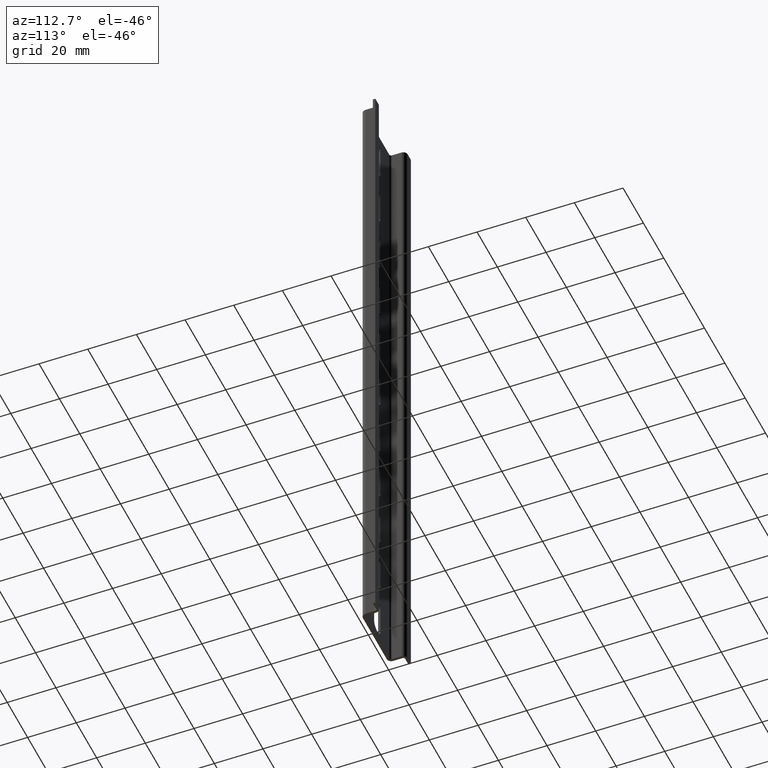
[diagram: clean part render]
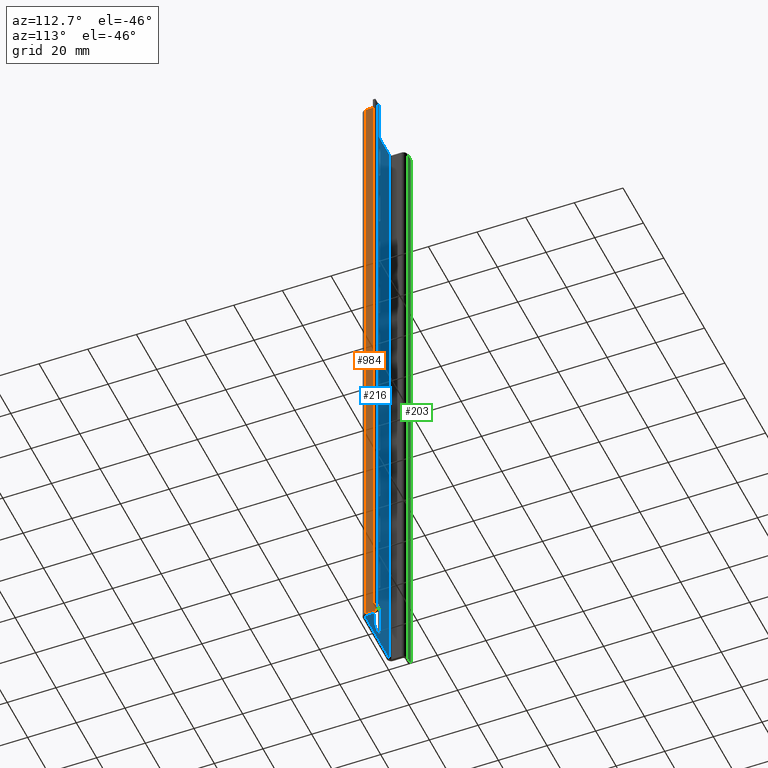
[diagram: same view with three faces highlighted in distinct colors, each labeled with its STEP entity id]
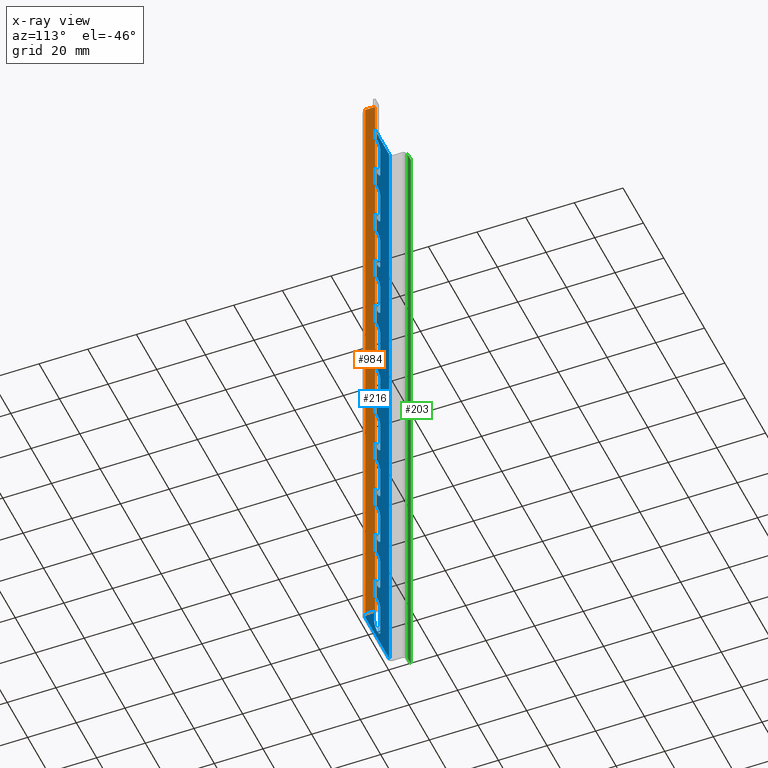
[diagram: x-ray of the same camera — body ghosted, the three highlighted faces saturated]
A machine part, auxiliary view with three faces highlighted in distinct colors.
The next image is the same camera in x-ray (body ghosted, the three faces saturated) — at least one of them is partly hidden behind the body in this view.
Their STEP definitions:

[orange] entity #984 — the highlighted planar face has unit normal (-1, 0, 0).
#32 = VECTOR ( 'NONE', #1032, 1000.000000000000000 ) ;
#98 = CARTESIAN_POINT ( 'NONE',  ( 27.00000000000000000, 5.700000000000000178, 275.0000000000000000 ) ) ;
#122 = DIRECTION ( 'NONE',  ( 0.000000000000000000, 0.000000000000000000, 1.000000000000000000 ) ) ;
#197 = VECTOR ( 'NONE', #1293, 1000.000000000000000 ) ;
#312 = ORIENTED_EDGE ( 'NONE', *, *, #861, .F. ) ;
#417 = EDGE_CURVE ( 'NONE', #2237, #1706, #1923, .T. ) ;
#426 = VERTEX_POINT ( 'NONE', #840 ) ;
#501 = CARTESIAN_POINT ( 'NONE',  ( 27.00000000000000000, 0.000000000000000000, 0.000000000000000000 ) ) ;
#721 = VECTOR ( 'NONE', #1080, 1000.000000000000000 ) ;
#723 = LINE ( 'NONE', #2145, #721 ) ;
#771 = CARTESIAN_POINT ( 'NONE',  ( 27.00000000000000000, 1.221245327087999603E-13, 275.0000000000000000 ) ) ;
#803 = ORIENTED_EDGE ( 'NONE', *, *, #1996, .T. ) ;
#819 = AXIS2_PLACEMENT_3D ( 'NONE', #501, #2099, #122 ) ;
#840 = CARTESIAN_POINT ( 'NONE',  ( 27.00000000000000000, 1.800000000000000044, -7.993605777301000084E-16 ) ) ;
#861 = EDGE_CURVE ( 'NONE', #1968, #1706, #1524, .T. ) ;
#893 = ORIENTED_EDGE ( 'NONE', *, *, #417, .T. ) ;
#961 = DIRECTION ( 'NONE',  ( 0.000000000000000000, 1.000000000000000000, -4.440892098500999885E-16 ) ) ;
#984 = ADVANCED_FACE ( 'NONE', ( #2124 ), #1379, .F. ) ;
#1009 = VECTOR ( 'NONE', #961, 1000.000000000000000 ) ;
#1032 = DIRECTION ( 'NONE',  ( 0.000000000000000000, 4.440892098500999885E-16, 1.000000000000000000 ) ) ;
#1062 = CARTESIAN_POINT ( 'NONE',  ( 27.00000000000000000, 1.800000000000000044, 275.0000000000000000 ) ) ;
#1080 = DIRECTION ( 'NONE',  ( 0.000000000000000000, 1.000000000000000000, -4.440892098500999885E-16 ) ) ;
#1088 = ORIENTED_EDGE ( 'NONE', *, *, #1634, .F. ) ;
#1293 = DIRECTION ( 'NONE',  ( 0.000000000000000000, 4.440892098500999885E-16, 1.000000000000000000 ) ) ;
#1330 = CARTESIAN_POINT ( 'NONE',  ( 27.00000000000000000, 5.700000000000000178, -2.531308496145000031E-15 ) ) ;
#1379 = PLANE ( 'NONE',  #819 ) ;
#1469 = CARTESIAN_POINT ( 'NONE',  ( 27.00000000000000000, 1.800000000000000044, -7.993605777301000084E-16 ) ) ;
#1524 = LINE ( 'NONE', #771, #1009 ) ;
#1634 = EDGE_CURVE ( 'NONE', #426, #1968, #2315, .T. ) ;
#1706 = VERTEX_POINT ( 'NONE', #98 ) ;
#1772 = CARTESIAN_POINT ( 'NONE',  ( 27.00000000000000000, 5.700000000000000178, -2.531308496145000031E-15 ) ) ;
#1923 = LINE ( 'NONE', #1772, #32 ) ;
#1930 = EDGE_LOOP ( 'NONE', ( #893, #312, #1088, #803 ) ) ;
#1968 = VERTEX_POINT ( 'NONE', #1062 ) ;
#1996 = EDGE_CURVE ( 'NONE', #426, #2237, #723, .T. ) ;
#2099 = DIRECTION ( 'NONE',  ( -1.000000000000000000, 0.000000000000000000, 0.000000000000000000 ) ) ;
#2124 = FACE_OUTER_BOUND ( 'NONE', #1930, .T. ) ;
#2145 = CARTESIAN_POINT ( 'NONE',  ( 27.00000000000000000, 0.000000000000000000, 0.000000000000000000 ) ) ;
#2237 = VERTEX_POINT ( 'NONE', #1330 ) ;
#2315 = LINE ( 'NONE', #1469, #197 ) ;

[blue] entity #216 — the highlighted planar face has unit normal (0, -1, 0).
#5 = EDGE_CURVE ( 'NONE', #1384, #1329, #1269, .T. ) ;
#11 = ORIENTED_EDGE ( 'NONE', *, *, #5, .F. ) ;
#24 = CARTESIAN_POINT ( 'NONE',  ( 13.50000000000000000, 1.000000000000000000, 31.64999999999999858 ) ) ;
#30 = EDGE_CURVE ( 'NONE', #2197, #141, #1419, .T. ) ;
#33 = CARTESIAN_POINT ( 'NONE',  ( 16.65000000000000213, 1.000000000000000000, 118.3499999999999943 ) ) ;
#34 = CARTESIAN_POINT ( 'NONE',  ( 13.50000000000000000, 1.000000000000000000, 18.35000000000000142 ) ) ;
#39 = VERTEX_POINT ( 'NONE', #2171 ) ;
#59 = ORIENTED_EDGE ( 'NONE', *, *, #346, .F. ) ;
#64 = CARTESIAN_POINT ( 'NONE',  ( 13.50000000000000000, 1.000000000000000000, 6.649999999999999467 ) ) ;
#66 = VECTOR ( 'NONE', #1963, 1000.000000000000000 ) ;
#71 = ORIENTED_EDGE ( 'NONE', *, *, #1098, .F. ) ;
#74 = CARTESIAN_POINT ( 'NONE',  ( 16.65000000000000213, 1.000000000000000000, 218.3499999999999943 ) ) ;
#83 = VERTEX_POINT ( 'NONE', #1613 ) ;
#85 = ORIENTED_EDGE ( 'NONE', *, *, #547, .F. ) ;
#93 = LINE ( 'NONE', #807, #1568 ) ;
#94 = ORIENTED_EDGE ( 'NONE', *, *, #1654, .F. ) ;
#95 = CARTESIAN_POINT ( 'NONE',  ( 16.65000000000000213, 1.000000000000000000, 31.64999999999999858 ) ) ;
#96 = VERTEX_POINT ( 'NONE', #611 ) ;
#100 = DIRECTION ( 'NONE',  ( 0.000000000000000000, 4.440892098500999885E-16, 1.000000000000000000 ) ) ;
#106 = ORIENTED_EDGE ( 'NONE', *, *, #2068, .F. ) ;
#109 = EDGE_CURVE ( 'NONE', #1328, #1294, #475, .T. ) ;
#110 = CARTESIAN_POINT ( 'NONE',  ( 16.65000000000000213, 1.000000000000000000, 168.3499999999999943 ) ) ;
#112 = ORIENTED_EDGE ( 'NONE', *, *, #694, .F. ) ;
#118 = CARTESIAN_POINT ( 'NONE',  ( 10.34999999999999964, 1.000000000000000000, 193.3499999999999943 ) ) ;
#119 = VERTEX_POINT ( 'NONE', #764 ) ;
#130 = ORIENTED_EDGE ( 'NONE', *, *, #1641, .F. ) ;
#140 = DIRECTION ( 'NONE',  ( 0.000000000000000000, 1.000000000000000000, -4.440892098500999885E-16 ) ) ;
#141 = VERTEX_POINT ( 'NONE', #785 ) ;
#142 = AXIS2_PLACEMENT_3D ( 'NONE', #64, #630, #619 ) ;
#143 = CARTESIAN_POINT ( 'NONE',  ( 1.800000000000000044, 1.000000000000000000, -4.440892098500999885E-16 ) ) ;
#156 = EDGE_CURVE ( 'NONE', #956, #959, #2021, .T. ) ;
#159 = DIRECTION ( 'NONE',  ( 0.000000000000000000, 4.440892098500999885E-16, 1.000000000000000000 ) ) ;
#165 = VERTEX_POINT ( 'NONE', #1667 ) ;
#171 = DIRECTION ( 'NONE',  ( 0.000000000000000000, 4.440892098500999885E-16, 1.000000000000000000 ) ) ;
#179 = CIRCLE ( 'NONE', #1907, 3.149999999999999911 ) ;
#182 = DIRECTION ( 'NONE',  ( 0.000000000000000000, 1.000000000000000000, -4.440892098500999885E-16 ) ) ;
#185 = CARTESIAN_POINT ( 'NONE',  ( 10.34999999999999964, 1.000000000000000000, 118.3499999999999943 ) ) ;
#195 = CARTESIAN_POINT ( 'NONE',  ( 13.50000000000000000, 1.000000000000000000, 268.3499999999999659 ) ) ;
#199 = DIRECTION ( 'NONE',  ( -1.000000000000000000, 0.000000000000000000, 0.000000000000000000 ) ) ;
#208 = LINE ( 'NONE', #342, #1245 ) ;
#211 = CARTESIAN_POINT ( 'NONE',  ( 13.50000000000000000, 1.000000000000000000, 193.3499999999999943 ) ) ;
#216 = ADVANCED_FACE ( 'NONE', ( #621, #941, #2053, #441, #1472, #577, #1297, #1658, #453, #1038, #2065, #1709 ), #998, .F. ) ;
#218 = DIRECTION ( 'NONE',  ( -1.000000000000000000, 0.000000000000000000, 0.000000000000000000 ) ) ;
#226 = ORIENTED_EDGE ( 'NONE', *, *, #1337, .F. ) ;
#231 = CARTESIAN_POINT ( 'NONE',  ( 10.34999999999999964, 1.000000000000000000, 18.35000000000000142 ) ) ;
#246 = ORIENTED_EDGE ( 'NONE', *, *, #1507, .F. ) ;
#254 = VECTOR ( 'NONE', #100, 1000.000000000000000 ) ;
#262 = AXIS2_PLACEMENT_3D ( 'NONE', #1403, #140, #1001 ) ;
#264 = CIRCLE ( 'NONE', #265, 3.149999999999999911 ) ;
#265 = AXIS2_PLACEMENT_3D ( 'NONE', #1630, #2188, #390 ) ;
#266 = DIRECTION ( 'NONE',  ( 0.000000000000000000, 1.000000000000000000, -4.440892098500999885E-16 ) ) ;
#267 = EDGE_CURVE ( 'NONE', #1192, #275, #1350, .T. ) ;
#275 = VERTEX_POINT ( 'NONE', #2231 ) ;
#276 = VERTEX_POINT ( 'NONE', #1702 ) ;
#285 = VECTOR ( 'NONE', #2299, 1000.000000000000000 ) ;
#293 = DIRECTION ( 'NONE',  ( 0.000000000000000000, -4.440892098500999885E-16, -1.000000000000000000 ) ) ;
#294 = ORIENTED_EDGE ( 'NONE', *, *, #2205, .F. ) ;
#295 = EDGE_CURVE ( 'NONE', #1561, #589, #179, .T. ) ;
#303 = VERTEX_POINT ( 'NONE', #1361 ) ;
#304 = AXIS2_PLACEMENT_3D ( 'NONE', #967, #1889, #1485 ) ;
#316 = LINE ( 'NONE', #468, #1349 ) ;
#327 = AXIS2_PLACEMENT_3D ( 'NONE', #1746, #1194, #668 ) ;
#328 = CARTESIAN_POINT ( 'NONE',  ( 1.800000000000000044, 1.000000000000000000, 275.0000000000000000 ) ) ;
#342 = CARTESIAN_POINT ( 'NONE',  ( 10.34999999999999964, 1.000000000000000000, 31.64999999999999858 ) ) ;
#346 = EDGE_CURVE ( 'NONE', #1767, #1605, #93, .T. ) ;
#348 = DIRECTION ( 'NONE',  ( -1.000000000000000000, 0.000000000000000000, 0.000000000000000000 ) ) ;
#350 = EDGE_CURVE ( 'NONE', #1289, #2197, #1182, .T. ) ;
#361 = DIRECTION ( 'NONE',  ( 0.000000000000000000, 1.000000000000000000, -4.440892098500999885E-16 ) ) ;
#367 = CARTESIAN_POINT ( 'NONE',  ( 10.34999999999999964, 1.000000000000000000, 68.34999999999999432 ) ) ;
#379 = DIRECTION ( 'NONE',  ( 0.000000000000000000, 1.000000000000000000, -4.440892098500999885E-16 ) ) ;
#381 = EDGE_LOOP ( 'NONE', ( #1623, #1601, #94, #1322 ) ) ;
#390 = DIRECTION ( 'NONE',  ( -1.000000000000000000, 0.000000000000000000, 0.000000000000000000 ) ) ;
#392 = VERTEX_POINT ( 'NONE', #1764 ) ;
#404 = AXIS2_PLACEMENT_3D ( 'NONE', #34, #750, #1470 ) ;
#411 = CARTESIAN_POINT ( 'NONE',  ( 10.34999999999999964, 1.000000000000000000, 93.35000000000000853 ) ) ;
#419 = ORIENTED_EDGE ( 'NONE', *, *, #830, .F. ) ;
#421 = CARTESIAN_POINT ( 'NONE',  ( 13.50000000000000000, 1.000000000000000000, 231.6500000000000057 ) ) ;
#422 = EDGE_CURVE ( 'NONE', #2059, #909, #316, .T. ) ;
#428 = CARTESIAN_POINT ( 'NONE',  ( 13.50000000000000000, 1.000000000000000000, 93.35000000000000853 ) ) ;
#433 = CARTESIAN_POINT ( 'NONE',  ( 10.34999999999999964, 1.000000000000000000, 6.649999999999999467 ) ) ;
#436 = VERTEX_POINT ( 'NONE', #328 ) ;
#437 = VECTOR ( 'NONE', #474, 1000.000000000000000 ) ;
#438 = EDGE_CURVE ( 'NONE', #709, #436, #2084, .T. ) ;
#441 = FACE_BOUND ( 'NONE', #2073, .T. ) ;
#443 = ORIENTED_EDGE ( 'NONE', *, *, #1527, .F. ) ;
#446 = VERTEX_POINT ( 'NONE', #143 ) ;
#451 = CIRCLE ( 'NONE', #1732, 3.149999999999999911 ) ;
#453 = FACE_BOUND ( 'NONE', #578, .T. ) ;
#468 = CARTESIAN_POINT ( 'NONE',  ( 10.34999999999999964, 1.000000000000000000, 206.6500000000000057 ) ) ;
#474 = DIRECTION ( 'NONE',  ( 0.000000000000000000, -4.440892098500999885E-16, -1.000000000000000000 ) ) ;
#475 = CIRCLE ( 'NONE', #1758, 3.149999999999999911 ) ;
#478 = CARTESIAN_POINT ( 'NONE',  ( 10.34999999999999964, 1.000000000000000000, 156.6500000000000057 ) ) ;
#498 = CARTESIAN_POINT ( 'NONE',  ( 26.00000000000000000, 1.000000000000000000, 275.0000000000000000 ) ) ;
#508 = VERTEX_POINT ( 'NONE', #1945 ) ;
#512 = CARTESIAN_POINT ( 'NONE',  ( 26.00000000000000000, 1.000000000000000000, -4.440892098500999885E-16 ) ) ;
#532 = VECTOR ( 'NONE', #1532, 1000.000000000000000 ) ;
#533 = AXIS2_PLACEMENT_3D ( 'NONE', #1606, #361, #218 ) ;
#541 = ORIENTED_EDGE ( 'NONE', *, *, #2190, .F. ) ;
#547 = EDGE_CURVE ( 'NONE', #119, #165, #1090, .T. ) ;
#548 = CARTESIAN_POINT ( 'NONE',  ( 16.65000000000000213, 1.000000000000000000, 243.3500000000000227 ) ) ;
#550 = ORIENTED_EDGE ( 'NONE', *, *, #1012, .F. ) ;
#564 = VECTOR ( 'NONE', #758, 1000.000000000000000 ) ;
#566 = EDGE_CURVE ( 'NONE', #446, #436, #1598, .T. ) ;
#570 = CARTESIAN_POINT ( 'NONE',  ( 16.65000000000000213, 1.000000000000000000, 68.34999999999999432 ) ) ;
#572 = ORIENTED_EDGE ( 'NONE', *, *, #2247, .F. ) ;
#574 = EDGE_CURVE ( 'NONE', #96, #2015, #1560, .T. ) ;
#577 = FACE_BOUND ( 'NONE', #979, .T. ) ;
#578 = EDGE_LOOP ( 'NONE', ( #246, #811, #106, #945 ) ) ;
#583 = DIRECTION ( 'NONE',  ( 0.000000000000000000, 4.440892098500999885E-16, 1.000000000000000000 ) ) ;
#589 = VERTEX_POINT ( 'NONE', #2115 ) ;
#590 = CARTESIAN_POINT ( 'NONE',  ( 16.65000000000000213, 1.000000000000000000, 181.6500000000000057 ) ) ;
#601 = EDGE_CURVE ( 'NONE', #276, #730, #2280, .T. ) ;
#611 = CARTESIAN_POINT ( 'NONE',  ( 10.34999999999999964, 1.000000000000000000, 131.6499999999999773 ) ) ;
#619 = DIRECTION ( 'NONE',  ( -1.000000000000000000, 0.000000000000000000, 0.000000000000000000 ) ) ;
#621 = FACE_BOUND ( 'NONE', #1626, .T. ) ;
#623 = EDGE_CURVE ( 'NONE', #2214, #508, #2201, .T. ) ;
#629 = EDGE_CURVE ( 'NONE', #2273, #83, #2089, .T. ) ;
#630 = DIRECTION ( 'NONE',  ( 0.000000000000000000, 1.000000000000000000, -4.440892098500999885E-16 ) ) ;
#632 = CIRCLE ( 'NONE', #404, 3.149999999999999911 ) ;
#634 = EDGE_LOOP ( 'NONE', ( #1449, #550, #1301, #1994 ) ) ;
#656 = EDGE_LOOP ( 'NONE', ( #1316, #443, #1521, #294 ) ) ;
#661 = DIRECTION ( 'NONE',  ( 0.000000000000000000, 4.440892098500999885E-16, 1.000000000000000000 ) ) ;
#668 = DIRECTION ( 'NONE',  ( -1.000000000000000000, 0.000000000000000000, 0.000000000000000000 ) ) ;
#673 = DIRECTION ( 'NONE',  ( -1.000000000000000000, 0.000000000000000000, 0.000000000000000000 ) ) ;
#674 = AXIS2_PLACEMENT_3D ( 'NONE', #1867, #1148, #783 ) ;
#677 = EDGE_CURVE ( 'NONE', #2208, #1902, #1433, .T. ) ;
#681 = DIRECTION ( 'NONE',  ( -1.000000000000000000, 0.000000000000000000, 0.000000000000000000 ) ) ;
#683 = ORIENTED_EDGE ( 'NONE', *, *, #788, .F. ) ;
#684 = DIRECTION ( 'NONE',  ( 0.000000000000000000, -1.000000000000000000, 4.440892098500999885E-16 ) ) ;
#686 = VECTOR ( 'NONE', #1263, 1000.000000000000000 ) ;
#694 = EDGE_CURVE ( 'NONE', #1294, #2214, #1099, .T. ) ;
#695 = CARTESIAN_POINT ( 'NONE',  ( 13.50000000000000000, 1.000000000000000000, 81.65000000000000568 ) ) ;
#696 = ORIENTED_EDGE ( 'NONE', *, *, #295, .F. ) ;
#703 = VERTEX_POINT ( 'NONE', #1830 ) ;
#709 = VERTEX_POINT ( 'NONE', #1655 ) ;
#710 = EDGE_LOOP ( 'NONE', ( #1155, #1134, #1072, #1126 ) ) ;
#715 = CARTESIAN_POINT ( 'NONE',  ( 10.34999999999999964, 1.000000000000000000, 156.6500000000000057 ) ) ;
#716 = EDGE_CURVE ( 'NONE', #165, #1561, #1254, .T. ) ;
#725 = LINE ( 'NONE', #548, #1288 ) ;
#728 = LINE ( 'NONE', #1413, #1021 ) ;
#730 = VERTEX_POINT ( 'NONE', #185 ) ;
#744 = DIRECTION ( 'NONE',  ( 0.000000000000000000, 1.000000000000000000, -4.440892098500999885E-16 ) ) ;
#750 = DIRECTION ( 'NONE',  ( 0.000000000000000000, 1.000000000000000000, -4.440892098500999885E-16 ) ) ;
#758 = DIRECTION ( 'NONE',  ( 0.000000000000000000, -4.440892098500999885E-16, -1.000000000000000000 ) ) ;
#764 = CARTESIAN_POINT ( 'NONE',  ( 16.65000000000000213, 1.000000000000000000, 56.64999999999999858 ) ) ;
#775 = ORIENTED_EDGE ( 'NONE', *, *, #623, .F. ) ;
#783 = DIRECTION ( 'NONE',  ( -1.000000000000000000, 0.000000000000000000, 0.000000000000000000 ) ) ;
#784 = ORIENTED_EDGE ( 'NONE', *, *, #30, .F. ) ;
#785 = CARTESIAN_POINT ( 'NONE',  ( 10.34999999999999964, 1.000000000000000000, 31.64999999999999858 ) ) ;
#788 = EDGE_CURVE ( 'NONE', #1605, #956, #632, .T. ) ;
#789 = CARTESIAN_POINT ( 'NONE',  ( 16.65000000000000213, 1.000000000000000000, 81.65000000000000568 ) ) ;
#797 = VECTOR ( 'NONE', #1340, 1000.000000000000000 ) ;
#807 = CARTESIAN_POINT ( 'NONE',  ( 10.34999999999999964, 1.000000000000000000, 6.649999999999999467 ) ) ;
#809 = CARTESIAN_POINT ( 'NONE',  ( 13.50000000000000000, 1.000000000000000000, 156.6500000000000057 ) ) ;
#811 = ORIENTED_EDGE ( 'NONE', *, *, #1748, .F. ) ;
#818 = CARTESIAN_POINT ( 'NONE',  ( 13.50000000000000000, 1.000000000000000000, 68.34999999999999432 ) ) ;
#830 = EDGE_CURVE ( 'NONE', #2015, #2306, #2022, .T. ) ;
#834 = CARTESIAN_POINT ( 'NONE',  ( 16.65000000000000213, 1.000000000000000000, 43.35000000000000142 ) ) ;
#843 = EDGE_LOOP ( 'NONE', ( #784, #1913, #874, #1676 ) ) ;
#844 = DIRECTION ( 'NONE',  ( 0.000000000000000000, 4.440892098500999885E-16, 1.000000000000000000 ) ) ;
#854 = DIRECTION ( 'NONE',  ( 0.000000000000000000, 4.440892098500999885E-16, 1.000000000000000000 ) ) ;
#858 = VECTOR ( 'NONE', #854, 1000.000000000000000 ) ;
#865 = LINE ( 'NONE', #110, #1504 ) ;
#874 = ORIENTED_EDGE ( 'NONE', *, *, #1514, .F. ) ;
#875 = CARTESIAN_POINT ( 'NONE',  ( 10.34999999999999964, 1.000000000000000000, 81.65000000000000568 ) ) ;
#883 = CARTESIAN_POINT ( 'NONE',  ( 10.34999999999999964, 1.000000000000000000, 231.6500000000000057 ) ) ;
#887 = EDGE_CURVE ( 'NONE', #2224, #703, #2316, .T. ) ;
#890 = EDGE_CURVE ( 'NONE', #959, #1767, #1157, .T. ) ;
#909 = VERTEX_POINT ( 'NONE', #1505 ) ;
#910 = DIRECTION ( 'NONE',  ( -1.000000000000000000, 0.000000000000000000, 0.000000000000000000 ) ) ;
#919 = ORIENTED_EDGE ( 'NONE', *, *, #2319, .F. ) ;
#924 = DIRECTION ( 'NONE',  ( 0.000000000000000000, 1.000000000000000000, -4.440892098500999885E-16 ) ) ;
#941 = FACE_BOUND ( 'NONE', #2310, .T. ) ;
#942 = VECTOR ( 'NONE', #661, 1000.000000000000000 ) ;
#944 = VERTEX_POINT ( 'NONE', #1689 ) ;
#945 = ORIENTED_EDGE ( 'NONE', *, *, #422, .F. ) ;
#947 = DIRECTION ( 'NONE',  ( -1.000000000000000000, 0.000000000000000000, 0.000000000000000000 ) ) ;
#948 = CARTESIAN_POINT ( 'NONE',  ( 10.34999999999999964, 1.000000000000000000, 243.3500000000000227 ) ) ;
#949 = CIRCLE ( 'NONE', #2034, 3.149999999999999911 ) ;
#956 = VERTEX_POINT ( 'NONE', #1516 ) ;
#959 = VERTEX_POINT ( 'NONE', #1335 ) ;
#963 = DIRECTION ( 'NONE',  ( 0.000000000000000000, 1.000000000000000000, -4.440892098500999885E-16 ) ) ;
#967 = CARTESIAN_POINT ( 'NONE',  ( 13.50000000000000000, 1.000000000000000000, 118.3499999999999943 ) ) ;
#977 = EDGE_CURVE ( 'NONE', #2172, #446, #1407, .T. ) ;
#979 = EDGE_LOOP ( 'NONE', ( #1238, #572, #541, #1095 ) ) ;
#981 = CARTESIAN_POINT ( 'NONE',  ( 16.65000000000000213, 1.000000000000000000, 131.6499999999999773 ) ) ;
#983 = CARTESIAN_POINT ( 'NONE',  ( 25.19999999999999929, 1.000000000000000000, -4.440892098500999885E-16 ) ) ;
#988 = CARTESIAN_POINT ( 'NONE',  ( 10.34999999999999964, 1.000000000000000000, 256.6499999999999773 ) ) ;
#998 = PLANE ( 'NONE',  #2166 ) ;
#1001 = DIRECTION ( 'NONE',  ( -1.000000000000000000, 0.000000000000000000, 0.000000000000000000 ) ) ;
#1002 = VERTEX_POINT ( 'NONE', #1417 ) ;
#1010 = DIRECTION ( 'NONE',  ( -1.000000000000000000, 0.000000000000000000, 0.000000000000000000 ) ) ;
#1012 = EDGE_CURVE ( 'NONE', #303, #1002, #865, .T. ) ;
#1014 = CARTESIAN_POINT ( 'NONE',  ( 13.50000000000000000, 1.000000000000000000, 106.6499999999999915 ) ) ;
#1021 = VECTOR ( 'NONE', #2285, 1000.000000000000000 ) ;
#1025 = CIRCLE ( 'NONE', #304, 3.149999999999999911 ) ;
#1027 = DIRECTION ( 'NONE',  ( 0.000000000000000000, 4.440892098500999885E-16, 1.000000000000000000 ) ) ;
#1030 = LINE ( 'NONE', #875, #942 ) ;
#1038 = FACE_BOUND ( 'NONE', #1112, .T. ) ;
#1066 = AXIS2_PLACEMENT_3D ( 'NONE', #2176, #182, #2016 ) ;
#1069 = DIRECTION ( 'NONE',  ( 0.000000000000000000, 1.000000000000000000, -4.440892098500999885E-16 ) ) ;
#1072 = ORIENTED_EDGE ( 'NONE', *, *, #2088, .F. ) ;
#1076 = CARTESIAN_POINT ( 'NONE',  ( 1.800000000000000044, 1.000000000000000000, -4.440892098500999885E-16 ) ) ;
#1077 = DIRECTION ( 'NONE',  ( 0.000000000000000000, 1.000000000000000000, -4.440892098500999885E-16 ) ) ;
#1081 = CARTESIAN_POINT ( 'NONE',  ( 10.34999999999999964, 1.000000000000000000, 256.6499999999999773 ) ) ;
#1090 = CIRCLE ( 'NONE', #327, 3.149999999999999911 ) ;
#1093 = DIRECTION ( 'NONE',  ( 0.000000000000000000, 4.440892098500999885E-16, 1.000000000000000000 ) ) ;
#1095 = ORIENTED_EDGE ( 'NONE', *, *, #601, .F. ) ;
#1098 = EDGE_CURVE ( 'NONE', #589, #119, #1993, .T. ) ;
#1099 = LINE ( 'NONE', #1820, #1644 ) ;
#1100 = CARTESIAN_POINT ( 'NONE',  ( 13.50000000000000000, 1.000000000000000000, 206.6500000000000057 ) ) ;
#1108 = CARTESIAN_POINT ( 'NONE',  ( 16.65000000000000213, 1.000000000000000000, 193.3499999999999943 ) ) ;
#1112 = EDGE_LOOP ( 'NONE', ( #226, #130, #1578, #11 ) ) ;
#1126 = ORIENTED_EDGE ( 'NONE', *, *, #267, .F. ) ;
#1128 = DIRECTION ( 'NONE',  ( 0.000000000000000000, -4.440892098500999885E-16, -1.000000000000000000 ) ) ;
#1132 = AXIS2_PLACEMENT_3D ( 'NONE', #1014, #1935, #1726 ) ;
#1134 = ORIENTED_EDGE ( 'NONE', *, *, #677, .F. ) ;
#1135 = LINE ( 'NONE', #1670, #1473 ) ;
#1141 = DIRECTION ( 'NONE',  ( 0.000000000000000000, 1.000000000000000000, -4.440892098500999885E-16 ) ) ;
#1145 = DIRECTION ( 'NONE',  ( 0.000000000000000000, 1.000000000000000000, -4.440892098500999885E-16 ) ) ;
#1148 = DIRECTION ( 'NONE',  ( 0.000000000000000000, 1.000000000000000000, -4.440892098500999885E-16 ) ) ;
#1155 = ORIENTED_EDGE ( 'NONE', *, *, #2318, .F. ) ;
#1157 = CIRCLE ( 'NONE', #142, 3.149999999999999911 ) ;
#1167 = CIRCLE ( 'NONE', #1066, 3.149999999999999911 ) ;
#1173 = DIRECTION ( 'NONE',  ( -1.000000000000000000, 0.000000000000000000, 0.000000000000000000 ) ) ;
#1182 = LINE ( 'NONE', #834, #437 ) ;
#1192 = VERTEX_POINT ( 'NONE', #1081 ) ;
#1193 = VECTOR ( 'NONE', #1678, 1000.000000000000000 ) ;
#1194 = DIRECTION ( 'NONE',  ( 0.000000000000000000, 1.000000000000000000, -4.440892098500999885E-16 ) ) ;
#1198 = VECTOR ( 'NONE', #681, 1000.000000000000000 ) ;
#1238 = ORIENTED_EDGE ( 'NONE', *, *, #2303, .F. ) ;
#1245 = VECTOR ( 'NONE', #1093, 1000.000000000000000 ) ;
#1254 = LINE ( 'NONE', #1620, #1911 ) ;
#1261 = CARTESIAN_POINT ( 'NONE',  ( 10.34999999999999964, 1.000000000000000000, 206.6500000000000057 ) ) ;
#1263 = DIRECTION ( 'NONE',  ( 0.000000000000000000, -4.440892098500999885E-16, -1.000000000000000000 ) ) ;
#1264 = EDGE_CURVE ( 'NONE', #83, #303, #1386, .T. ) ;
#1267 = VERTEX_POINT ( 'NONE', #74 ) ;
#1269 = LINE ( 'NONE', #883, #285 ) ;
#1275 = AXIS2_PLACEMENT_3D ( 'NONE', #1373, #1145, #1685 ) ;
#1282 = VERTEX_POINT ( 'NONE', #981 ) ;
#1284 = CIRCLE ( 'NONE', #262, 3.149999999999999911 ) ;
#1286 = CIRCLE ( 'NONE', #1883, 3.149999999999999911 ) ;
#1288 = VECTOR ( 'NONE', #1478, 1000.000000000000000 ) ;
#1289 = VERTEX_POINT ( 'NONE', #2269 ) ;
#1294 = VERTEX_POINT ( 'NONE', #2105 ) ;
#1295 = DIRECTION ( 'NONE',  ( 0.000000000000000000, -4.440892098500999885E-16, -1.000000000000000000 ) ) ;
#1297 = FACE_BOUND ( 'NONE', #634, .T. ) ;
#1301 = ORIENTED_EDGE ( 'NONE', *, *, #1264, .F. ) ;
#1316 = ORIENTED_EDGE ( 'NONE', *, *, #887, .F. ) ;
#1322 = ORIENTED_EDGE ( 'NONE', *, *, #977, .T. ) ;
#1328 = VERTEX_POINT ( 'NONE', #411 ) ;
#1329 = VERTEX_POINT ( 'NONE', #948 ) ;
#1335 = CARTESIAN_POINT ( 'NONE',  ( 16.65000000000000213, 1.000000000000000000, 6.649999999999999467 ) ) ;
#1337 = EDGE_CURVE ( 'NONE', #1408, #1384, #2239, .T. ) ;
#1340 = DIRECTION ( 'NONE',  ( 0.000000000000000000, 4.440892098500999885E-16, 1.000000000000000000 ) ) ;
#1344 = VECTOR ( 'NONE', #171, 1000.000000000000000 ) ;
#1349 = VECTOR ( 'NONE', #159, 1000.000000000000000 ) ;
#1350 = LINE ( 'NONE', #988, #254 ) ;
#1352 = CIRCLE ( 'NONE', #1582, 3.149999999999999911 ) ;
#1358 = CARTESIAN_POINT ( 'NONE',  ( 13.50000000000000000, 1.000000000000000000, 181.6500000000000057 ) ) ;
#1361 = CARTESIAN_POINT ( 'NONE',  ( 16.65000000000000213, 1.000000000000000000, 168.3499999999999943 ) ) ;
#1373 = CARTESIAN_POINT ( 'NONE',  ( 13.50000000000000000, 1.000000000000000000, 168.3499999999999943 ) ) ;
#1384 = VERTEX_POINT ( 'NONE', #1435 ) ;
#1386 = CIRCLE ( 'NONE', #1275, 3.149999999999999911 ) ;
#1392 = CIRCLE ( 'NONE', #1132, 3.149999999999999911 ) ;
#1403 = CARTESIAN_POINT ( 'NONE',  ( 13.50000000000000000, 1.000000000000000000, 256.6499999999999773 ) ) ;
#1406 = EDGE_CURVE ( 'NONE', #1282, #96, #1352, .T. ) ;
#1407 = LINE ( 'NONE', #512, #1198 ) ;
#1408 = VERTEX_POINT ( 'NONE', #2309 ) ;
#1410 = DIRECTION ( 'NONE',  ( 0.000000000000000000, 1.000000000000000000, -4.440892098500999885E-16 ) ) ;
#1413 = CARTESIAN_POINT ( 'NONE',  ( 16.65000000000000213, 1.000000000000000000, 143.3499999999999943 ) ) ;
#1417 = CARTESIAN_POINT ( 'NONE',  ( 16.65000000000000213, 1.000000000000000000, 156.6500000000000057 ) ) ;
#1419 = CIRCLE ( 'NONE', #1797, 3.149999999999999911 ) ;
#1428 = ORIENTED_EDGE ( 'NONE', *, *, #716, .F. ) ;
#1433 = LINE ( 'NONE', #2008, #1761 ) ;
#1435 = CARTESIAN_POINT ( 'NONE',  ( 10.34999999999999964, 1.000000000000000000, 231.6500000000000057 ) ) ;
#1437 = EDGE_CURVE ( 'NONE', #2306, #1282, #728, .T. ) ;
#1443 = CARTESIAN_POINT ( 'NONE',  ( 10.34999999999999964, 1.000000000000000000, 143.3499999999999943 ) ) ;
#1449 = ORIENTED_EDGE ( 'NONE', *, *, #2183, .F. ) ;
#1456 = LINE ( 'NONE', #1108, #686 ) ;
#1470 = DIRECTION ( 'NONE',  ( -1.000000000000000000, 0.000000000000000000, 0.000000000000000000 ) ) ;
#1472 = FACE_BOUND ( 'NONE', #2241, .T. ) ;
#1473 = VECTOR ( 'NONE', #2036, 1000.000000000000000 ) ;
#1478 = DIRECTION ( 'NONE',  ( 0.000000000000000000, -4.440892098500999885E-16, -1.000000000000000000 ) ) ;
#1485 = DIRECTION ( 'NONE',  ( -1.000000000000000000, 0.000000000000000000, 0.000000000000000000 ) ) ;
#1498 = CARTESIAN_POINT ( 'NONE',  ( 16.65000000000000213, 1.000000000000000000, 268.3499999999999659 ) ) ;
#1504 = VECTOR ( 'NONE', #293, 1000.000000000000000 ) ;
#1505 = CARTESIAN_POINT ( 'NONE',  ( 10.34999999999999964, 1.000000000000000000, 218.3499999999999943 ) ) ;
#1507 = EDGE_CURVE ( 'NONE', #944, #2059, #1286, .T. ) ;
#1510 = CARTESIAN_POINT ( 'NONE',  ( 10.34999999999999964, 1.000000000000000000, 181.6500000000000057 ) ) ;
#1514 = EDGE_CURVE ( 'NONE', #39, #1289, #1167, .T. ) ;
#1516 = CARTESIAN_POINT ( 'NONE',  ( 16.65000000000000213, 1.000000000000000000, 18.35000000000000142 ) ) ;
#1521 = ORIENTED_EDGE ( 'NONE', *, *, #1579, .F. ) ;
#1527 = EDGE_CURVE ( 'NONE', #1752, #2224, #1456, .T. ) ;
#1532 = DIRECTION ( 'NONE',  ( 0.000000000000000000, -4.440892098500999885E-16, -1.000000000000000000 ) ) ;
#1554 = CARTESIAN_POINT ( 'NONE',  ( 16.65000000000000213, 1.000000000000000000, 143.3499999999999943 ) ) ;
#1560 = LINE ( 'NONE', #1762, #66 ) ;
#1561 = VERTEX_POINT ( 'NONE', #367 ) ;
#1568 = VECTOR ( 'NONE', #1027, 1000.000000000000000 ) ;
#1571 = EDGE_CURVE ( 'NONE', #1329, #392, #264, .T. ) ;
#1572 = AXIS2_PLACEMENT_3D ( 'NONE', #1358, #1141, #1675 ) ;
#1578 = ORIENTED_EDGE ( 'NONE', *, *, #1571, .F. ) ;
#1579 = EDGE_CURVE ( 'NONE', #2270, #1752, #1775, .T. ) ;
#1582 = AXIS2_PLACEMENT_3D ( 'NONE', #1781, #1077, #2298 ) ;
#1587 = VECTOR ( 'NONE', #2238, 1000.000000000000000 ) ;
#1595 = CARTESIAN_POINT ( 'NONE',  ( 16.65000000000000213, 1.000000000000000000, 106.6499999999999915 ) ) ;
#1598 = LINE ( 'NONE', #1076, #858 ) ;
#1601 = ORIENTED_EDGE ( 'NONE', *, *, #438, .F. ) ;
#1605 = VERTEX_POINT ( 'NONE', #231 ) ;
#1606 = CARTESIAN_POINT ( 'NONE',  ( 13.50000000000000000, 1.000000000000000000, 218.3499999999999943 ) ) ;
#1613 = CARTESIAN_POINT ( 'NONE',  ( 10.34999999999999964, 1.000000000000000000, 168.3499999999999943 ) ) ;
#1620 = CARTESIAN_POINT ( 'NONE',  ( 10.34999999999999964, 1.000000000000000000, 56.64999999999999858 ) ) ;
#1623 = ORIENTED_EDGE ( 'NONE', *, *, #566, .T. ) ;
#1626 = EDGE_LOOP ( 'NONE', ( #1919, #1687, #419, #1776 ) ) ;
#1629 = VERTEX_POINT ( 'NONE', #33 ) ;
#1630 = CARTESIAN_POINT ( 'NONE',  ( 13.50000000000000000, 1.000000000000000000, 243.3500000000000227 ) ) ;
#1641 = EDGE_CURVE ( 'NONE', #392, #1408, #725, .T. ) ;
#1644 = VECTOR ( 'NONE', #1128, 1000.000000000000000 ) ;
#1651 = VECTOR ( 'NONE', #2249, 1000.000000000000000 ) ;
#1654 = EDGE_CURVE ( 'NONE', #2172, #709, #2198, .T. ) ;
#1655 = CARTESIAN_POINT ( 'NONE',  ( 25.19999999999999929, 1.000000000000000000, 275.0000000000000000 ) ) ;
#1658 = FACE_BOUND ( 'NONE', #656, .T. ) ;
#1667 = CARTESIAN_POINT ( 'NONE',  ( 10.34999999999999964, 1.000000000000000000, 56.64999999999999858 ) ) ;
#1670 = CARTESIAN_POINT ( 'NONE',  ( 16.65000000000000213, 1.000000000000000000, 118.3499999999999943 ) ) ;
#1675 = DIRECTION ( 'NONE',  ( -1.000000000000000000, 0.000000000000000000, 0.000000000000000000 ) ) ;
#1676 = ORIENTED_EDGE ( 'NONE', *, *, #2055, .F. ) ;
#1678 = DIRECTION ( 'NONE',  ( 0.000000000000000000, -4.440892098500999885E-16, -1.000000000000000000 ) ) ;
#1685 = DIRECTION ( 'NONE',  ( -1.000000000000000000, 0.000000000000000000, 0.000000000000000000 ) ) ;
#1687 = ORIENTED_EDGE ( 'NONE', *, *, #1437, .F. ) ;
#1689 = CARTESIAN_POINT ( 'NONE',  ( 16.65000000000000213, 1.000000000000000000, 206.6500000000000057 ) ) ;
#1700 = ORIENTED_EDGE ( 'NONE', *, *, #890, .F. ) ;
#1702 = CARTESIAN_POINT ( 'NONE',  ( 10.34999999999999964, 1.000000000000000000, 106.6499999999999915 ) ) ;
#1704 = DIRECTION ( 'NONE',  ( 0.000000000000000000, 1.000000000000000000, -4.440892098500999885E-16 ) ) ;
#1707 = CARTESIAN_POINT ( 'NONE',  ( 16.65000000000000213, 1.000000000000000000, 218.3499999999999943 ) ) ;
#1709 = FACE_OUTER_BOUND ( 'NONE', #381, .T. ) ;
#1722 = CARTESIAN_POINT ( 'NONE',  ( 26.00000000000000000, 1.000000000000000000, -4.440892098500999885E-16 ) ) ;
#1726 = DIRECTION ( 'NONE',  ( -1.000000000000000000, 0.000000000000000000, 0.000000000000000000 ) ) ;
#1732 = AXIS2_PLACEMENT_3D ( 'NONE', #809, #1704, #947 ) ;
#1744 = CARTESIAN_POINT ( 'NONE',  ( 16.65000000000000213, 1.000000000000000000, 256.6499999999999773 ) ) ;
#1746 = CARTESIAN_POINT ( 'NONE',  ( 13.50000000000000000, 1.000000000000000000, 56.64999999999999858 ) ) ;
#1748 = EDGE_CURVE ( 'NONE', #1267, #944, #2029, .T. ) ;
#1752 = VERTEX_POINT ( 'NONE', #1858 ) ;
#1758 = AXIS2_PLACEMENT_3D ( 'NONE', #428, #963, #1884 ) ;
#1761 = VECTOR ( 'NONE', #1295, 1000.000000000000000 ) ;
#1762 = CARTESIAN_POINT ( 'NONE',  ( 10.34999999999999964, 1.000000000000000000, 131.6499999999999773 ) ) ;
#1764 = CARTESIAN_POINT ( 'NONE',  ( 16.65000000000000213, 1.000000000000000000, 243.3500000000000227 ) ) ;
#1767 = VERTEX_POINT ( 'NONE', #433 ) ;
#1775 = CIRCLE ( 'NONE', #1999, 3.149999999999999911 ) ;
#1776 = ORIENTED_EDGE ( 'NONE', *, *, #574, .F. ) ;
#1781 = CARTESIAN_POINT ( 'NONE',  ( 13.50000000000000000, 1.000000000000000000, 131.6499999999999773 ) ) ;
#1788 = DIRECTION ( 'NONE',  ( -1.000000000000000000, 0.000000000000000000, 0.000000000000000000 ) ) ;
#1797 = AXIS2_PLACEMENT_3D ( 'NONE', #24, #1069, #348 ) ;
#1820 = CARTESIAN_POINT ( 'NONE',  ( 16.65000000000000213, 1.000000000000000000, 93.35000000000000853 ) ) ;
#1829 = DIRECTION ( 'NONE',  ( -1.000000000000000000, 0.000000000000000000, 0.000000000000000000 ) ) ;
#1830 = CARTESIAN_POINT ( 'NONE',  ( 10.34999999999999964, 1.000000000000000000, 181.6500000000000057 ) ) ;
#1855 = DIRECTION ( 'NONE',  ( 0.000000000000000000, 1.000000000000000000, -4.440892098500999885E-16 ) ) ;
#1858 = CARTESIAN_POINT ( 'NONE',  ( 16.65000000000000213, 1.000000000000000000, 193.3499999999999943 ) ) ;
#1867 = CARTESIAN_POINT ( 'NONE',  ( 13.50000000000000000, 1.000000000000000000, 143.3499999999999943 ) ) ;
#1873 = AXIS2_PLACEMENT_3D ( 'NONE', #695, #1410, #1788 ) ;
#1883 = AXIS2_PLACEMENT_3D ( 'NONE', #1100, #379, #199 ) ;
#1884 = DIRECTION ( 'NONE',  ( -1.000000000000000000, 0.000000000000000000, 0.000000000000000000 ) ) ;
#1889 = DIRECTION ( 'NONE',  ( 0.000000000000000000, 1.000000000000000000, -4.440892098500999885E-16 ) ) ;
#1902 = VERTEX_POINT ( 'NONE', #1744 ) ;
#1907 = AXIS2_PLACEMENT_3D ( 'NONE', #818, #266, #1010 ) ;
#1911 = VECTOR ( 'NONE', #583, 1000.000000000000000 ) ;
#1913 = ORIENTED_EDGE ( 'NONE', *, *, #350, .F. ) ;
#1915 = VERTEX_POINT ( 'NONE', #1595 ) ;
#1919 = ORIENTED_EDGE ( 'NONE', *, *, #1406, .F. ) ;
#1935 = DIRECTION ( 'NONE',  ( 0.000000000000000000, 1.000000000000000000, -4.440892098500999885E-16 ) ) ;
#1945 = CARTESIAN_POINT ( 'NONE',  ( 10.34999999999999964, 1.000000000000000000, 81.65000000000000568 ) ) ;
#1962 = CIRCLE ( 'NONE', #533, 3.149999999999999911 ) ;
#1963 = DIRECTION ( 'NONE',  ( 0.000000000000000000, 4.440892098500999885E-16, 1.000000000000000000 ) ) ;
#1964 = ORIENTED_EDGE ( 'NONE', *, *, #109, .F. ) ;
#1993 = LINE ( 'NONE', #570, #564 ) ;
#1994 = ORIENTED_EDGE ( 'NONE', *, *, #629, .F. ) ;
#1999 = AXIS2_PLACEMENT_3D ( 'NONE', #211, #924, #1829 ) ;
#2008 = CARTESIAN_POINT ( 'NONE',  ( 16.65000000000000213, 1.000000000000000000, 268.3499999999999659 ) ) ;
#2015 = VERTEX_POINT ( 'NONE', #1443 ) ;
#2016 = DIRECTION ( 'NONE',  ( -1.000000000000000000, 0.000000000000000000, 0.000000000000000000 ) ) ;
#2021 = LINE ( 'NONE', #2191, #1193 ) ;
#2022 = CIRCLE ( 'NONE', #674, 3.149999999999999911 ) ;
#2026 = CARTESIAN_POINT ( 'NONE',  ( 25.19999999999999929, 1.000000000000000000, -4.440892098500999885E-16 ) ) ;
#2029 = LINE ( 'NONE', #1707, #532 ) ;
#2034 = AXIS2_PLACEMENT_3D ( 'NONE', #195, #744, #910 ) ;
#2036 = DIRECTION ( 'NONE',  ( 0.000000000000000000, -4.440892098500999885E-16, -1.000000000000000000 ) ) ;
#2044 = ORIENTED_EDGE ( 'NONE', *, *, #156, .F. ) ;
#2053 = FACE_BOUND ( 'NONE', #843, .T. ) ;
#2055 = EDGE_CURVE ( 'NONE', #141, #39, #208, .T. ) ;
#2059 = VERTEX_POINT ( 'NONE', #1261 ) ;
#2065 = FACE_BOUND ( 'NONE', #710, .T. ) ;
#2068 = EDGE_CURVE ( 'NONE', #909, #1267, #1962, .T. ) ;
#2073 = EDGE_LOOP ( 'NONE', ( #85, #71, #696, #1428 ) ) ;
#2084 = LINE ( 'NONE', #498, #1651 ) ;
#2088 = EDGE_CURVE ( 'NONE', #275, #2208, #949, .T. ) ;
#2089 = LINE ( 'NONE', #715, #1344 ) ;
#2098 = VECTOR ( 'NONE', #844, 1000.000000000000000 ) ;
#2105 = CARTESIAN_POINT ( 'NONE',  ( 16.65000000000000213, 1.000000000000000000, 93.35000000000000853 ) ) ;
#2115 = CARTESIAN_POINT ( 'NONE',  ( 16.65000000000000213, 1.000000000000000000, 68.34999999999999432 ) ) ;
#2137 = AXIS2_PLACEMENT_3D ( 'NONE', #421, #1855, #673 ) ;
#2166 = AXIS2_PLACEMENT_3D ( 'NONE', #1722, #684, #1173 ) ;
#2171 = CARTESIAN_POINT ( 'NONE',  ( 10.34999999999999964, 1.000000000000000000, 43.35000000000000142 ) ) ;
#2172 = VERTEX_POINT ( 'NONE', #2026 ) ;
#2176 = CARTESIAN_POINT ( 'NONE',  ( 13.50000000000000000, 1.000000000000000000, 43.35000000000000142 ) ) ;
#2183 = EDGE_CURVE ( 'NONE', #1002, #2273, #451, .T. ) ;
#2188 = DIRECTION ( 'NONE',  ( 0.000000000000000000, 1.000000000000000000, -4.440892098500999885E-16 ) ) ;
#2190 = EDGE_CURVE ( 'NONE', #730, #1629, #1025, .T. ) ;
#2191 = CARTESIAN_POINT ( 'NONE',  ( 16.65000000000000213, 1.000000000000000000, 18.35000000000000142 ) ) ;
#2195 = LINE ( 'NONE', #1510, #797 ) ;
#2197 = VERTEX_POINT ( 'NONE', #95 ) ;
#2198 = LINE ( 'NONE', #983, #1587 ) ;
#2201 = CIRCLE ( 'NONE', #1873, 3.149999999999999911 ) ;
#2205 = EDGE_CURVE ( 'NONE', #703, #2270, #2195, .T. ) ;
#2208 = VERTEX_POINT ( 'NONE', #1498 ) ;
#2214 = VERTEX_POINT ( 'NONE', #789 ) ;
#2224 = VERTEX_POINT ( 'NONE', #590 ) ;
#2231 = CARTESIAN_POINT ( 'NONE',  ( 10.34999999999999964, 1.000000000000000000, 268.3499999999999659 ) ) ;
#2238 = DIRECTION ( 'NONE',  ( 0.000000000000000000, 4.440892098500999885E-16, 1.000000000000000000 ) ) ;
#2239 = CIRCLE ( 'NONE', #2137, 3.149999999999999911 ) ;
#2241 = EDGE_LOOP ( 'NONE', ( #775, #112, #1964, #919 ) ) ;
#2247 = EDGE_CURVE ( 'NONE', #1629, #1915, #1135, .T. ) ;
#2249 = DIRECTION ( 'NONE',  ( -1.000000000000000000, 0.000000000000000000, 0.000000000000000000 ) ) ;
#2269 = CARTESIAN_POINT ( 'NONE',  ( 16.65000000000000213, 1.000000000000000000, 43.35000000000000142 ) ) ;
#2270 = VERTEX_POINT ( 'NONE', #118 ) ;
#2273 = VERTEX_POINT ( 'NONE', #478 ) ;
#2280 = LINE ( 'NONE', #2296, #2098 ) ;
#2285 = DIRECTION ( 'NONE',  ( 0.000000000000000000, -4.440892098500999885E-16, -1.000000000000000000 ) ) ;
#2296 = CARTESIAN_POINT ( 'NONE',  ( 10.34999999999999964, 1.000000000000000000, 106.6499999999999915 ) ) ;
#2298 = DIRECTION ( 'NONE',  ( -1.000000000000000000, 0.000000000000000000, 0.000000000000000000 ) ) ;
#2299 = DIRECTION ( 'NONE',  ( 0.000000000000000000, 4.440892098500999885E-16, 1.000000000000000000 ) ) ;
#2303 = EDGE_CURVE ( 'NONE', #1915, #276, #1392, .T. ) ;
#2306 = VERTEX_POINT ( 'NONE', #1554 ) ;
#2309 = CARTESIAN_POINT ( 'NONE',  ( 16.65000000000000213, 1.000000000000000000, 231.6500000000000057 ) ) ;
#2310 = EDGE_LOOP ( 'NONE', ( #1700, #2044, #683, #59 ) ) ;
#2316 = CIRCLE ( 'NONE', #1572, 3.149999999999999911 ) ;
#2318 = EDGE_CURVE ( 'NONE', #1902, #1192, #1284, .T. ) ;
#2319 = EDGE_CURVE ( 'NONE', #508, #1328, #1030, .T. ) ;

[green] entity #203 — the highlighted planar face has unit normal (0, -1, 0).
#27 = VERTEX_POINT ( 'NONE', #1460 ) ;
#48 = EDGE_CURVE ( 'NONE', #1451, #1531, #2140, .T. ) ;
#81 = PLANE ( 'NONE',  #1530 ) ;
#203 = ADVANCED_FACE ( 'NONE', ( #1130 ), #81, .F. ) ;
#315 = VERTEX_POINT ( 'NONE', #2283 ) ;
#364 = CARTESIAN_POINT ( 'NONE',  ( 1.000000000000000000, 7.500000000000000000, 275.0000000000000000 ) ) ;
#509 = EDGE_LOOP ( 'NONE', ( #1257, #1041, #1501, #1763 ) ) ;
#565 = DIRECTION ( 'NONE',  ( -1.000000000000000000, 0.000000000000000000, 0.000000000000000000 ) ) ;
#713 = VECTOR ( 'NONE', #888, 1000.000000000000000 ) ;
#780 = VECTOR ( 'NONE', #565, 1000.000000000000000 ) ;
#798 = DIRECTION ( 'NONE',  ( -1.000000000000000000, 0.000000000000000000, 0.000000000000000000 ) ) ;
#813 = LINE ( 'NONE', #2240, #895 ) ;
#848 = LINE ( 'NONE', #2048, #1649 ) ;
#876 = EDGE_CURVE ( 'NONE', #1451, #27, #813, .T. ) ;
#888 = DIRECTION ( 'NONE',  ( -1.000000000000000000, 0.000000000000000000, 0.000000000000000000 ) ) ;
#895 = VECTOR ( 'NONE', #2229, 1000.000000000000000 ) ;
#899 = CARTESIAN_POINT ( 'NONE',  ( -4.000000000000000000, 7.500000000000000000, -3.330669073874999855E-15 ) ) ;
#1041 = ORIENTED_EDGE ( 'NONE', *, *, #1101, .F. ) ;
#1101 = EDGE_CURVE ( 'NONE', #27, #315, #2186, .T. ) ;
#1130 = FACE_OUTER_BOUND ( 'NONE', #509, .T. ) ;
#1257 = ORIENTED_EDGE ( 'NONE', *, *, #1319, .T. ) ;
#1319 = EDGE_CURVE ( 'NONE', #1531, #315, #848, .T. ) ;
#1327 = DIRECTION ( 'NONE',  ( 0.000000000000000000, -1.000000000000000000, 4.440892098500999885E-16 ) ) ;
#1451 = VERTEX_POINT ( 'NONE', #1800 ) ;
#1460 = CARTESIAN_POINT ( 'NONE',  ( -0.8000000000000000444, 7.500000000000000000, 275.0000000000000000 ) ) ;
#1501 = ORIENTED_EDGE ( 'NONE', *, *, #876, .F. ) ;
#1517 = CARTESIAN_POINT ( 'NONE',  ( 1.000000000000000000, 7.500000000000000000, -3.330669073874999855E-15 ) ) ;
#1530 = AXIS2_PLACEMENT_3D ( 'NONE', #1517, #1327, #798 ) ;
#1531 = VERTEX_POINT ( 'NONE', #899 ) ;
#1649 = VECTOR ( 'NONE', #1696, 1000.000000000000000 ) ;
#1696 = DIRECTION ( 'NONE',  ( 0.000000000000000000, 4.440892098500999885E-16, 1.000000000000000000 ) ) ;
#1763 = ORIENTED_EDGE ( 'NONE', *, *, #48, .T. ) ;
#1800 = CARTESIAN_POINT ( 'NONE',  ( -0.8000000000000000444, 7.500000000000000000, -3.330669073874999855E-15 ) ) ;
#1812 = CARTESIAN_POINT ( 'NONE',  ( 1.000000000000000000, 7.500000000000000000, -3.330669073874999855E-15 ) ) ;
#2048 = CARTESIAN_POINT ( 'NONE',  ( -4.000000000000000000, 7.500000000000000000, -3.330669073874999855E-15 ) ) ;
#2140 = LINE ( 'NONE', #1812, #780 ) ;
#2186 = LINE ( 'NONE', #364, #713 ) ;
#2229 = DIRECTION ( 'NONE',  ( 0.000000000000000000, 4.440892098500999885E-16, 1.000000000000000000 ) ) ;
#2240 = CARTESIAN_POINT ( 'NONE',  ( -0.8000000000000000444, 7.500000000000000000, -3.330669073874999855E-15 ) ) ;
#2283 = CARTESIAN_POINT ( 'NONE',  ( -4.000000000000000000, 7.500000000000000000, 275.0000000000000000 ) ) ;